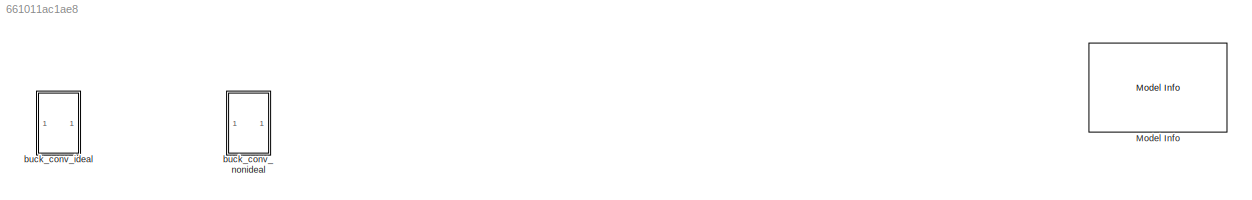
MODEL slx_661011ac1ae8
KIND model
CONFIG AbsTol = auto
CONFIG EnableMultiTasking = on
CONFIG FixedStep = 1e-7
CONFIG MaxStep = auto
CONFIG MinStep = auto
CONFIG RelTol = 1e-3
CONFIG SampleTimeConstraint = Unconstrained
CONFIG SolverName = ode3
CONFIG StartTime = 0.0
CONFIG StopTime = 0.06
BLOCK [Reference] Model Info  REF=simulink/Model-Wide
Utilities/Model Info
  Ports = []
  SourceBlock = simulink/Model-Wide\nUtilities/Model Info
  SourceProductBaseCode = SL
  SourceType = CMBlock
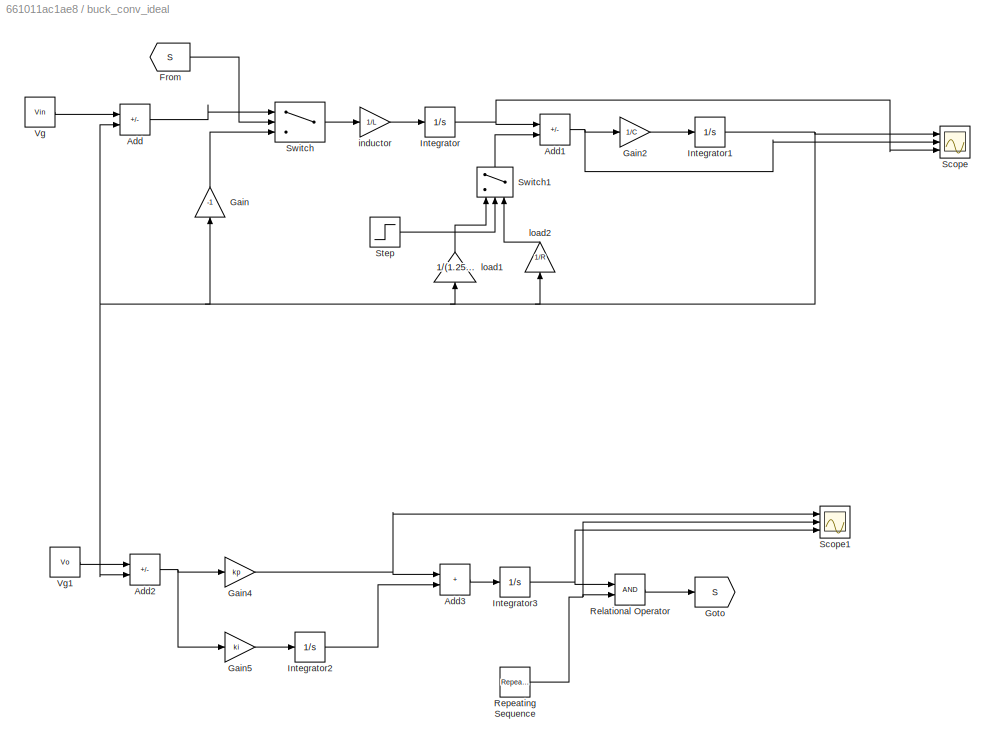
BLOCK [SubSystem] buck_conv_ideal
  Commented = on
  Ports = []
  RequestExecContextInheritance = off
BLOCK [Sum] buck_conv_ideal/Add
  IconShape = rectangular
  Inputs = +-
  Ports = [2, 1]
BLOCK [Sum] buck_conv_ideal/Add1
  IconShape = rectangular
  Inputs = +-
  Ports = [2, 1]
BLOCK [Sum] buck_conv_ideal/Add2
  IconShape = rectangular
  Inputs = +-
  Ports = [2, 1]
BLOCK [Sum] buck_conv_ideal/Add3
  IconShape = rectangular
  Inputs = 2
  Ports = [2, 1]
BLOCK [From] buck_conv_ideal/From
  GotoTag = S
BLOCK [Gain] buck_conv_ideal/Gain
  Gain = -1
  NameLocation = right
BLOCK [Gain] buck_conv_ideal/Gain2
  Gain = 1/C
BLOCK [Gain] buck_conv_ideal/Gain4
  Gain = kp
BLOCK [Gain] buck_conv_ideal/Gain5
  Gain = ki
BLOCK [Goto] buck_conv_ideal/Goto
  GotoTag = S
BLOCK [Integrator] buck_conv_ideal/Integrator
  Ports = [1, 1]
BLOCK [Integrator] buck_conv_ideal/Integrator1
  Ports = [1, 1]
BLOCK [Integrator] buck_conv_ideal/Integrator2
  LimitOutput = on
  LowerSaturationLimit = -1
  Ports = [1, 1]
  UpperSaturationLimit = 1
BLOCK [Integrator] buck_conv_ideal/Integrator3
  LimitOutput = on
  LowerSaturationLimit = -1
  Ports = [1, 1]
  UpperSaturationLimit = 1
BLOCK [RelationalOperator] buck_conv_ideal/Relational Operator
  InputSameDT = off
  OutDataTypeStr = boolean
  Ports = [2, 1]
BLOCK [Reference] buck_conv_ideal/Repeating Sequence  REF=simulink/Sources/Repeating
Sequence
  Ports = [0, 1]
  SourceBlock = simulink/Sources/Repeating\nSequence
  SourceProductBaseCode = SL
  SourceType = Repeating table
BLOCK [Scope] buck_conv_ideal/Scope
  Floating = off
  NumInputPorts = 3
  Ports = [3]
  ScopeSpecificationString = Simulink.scopes.TimeScopeBlockCfg('CurrentConfiguration', extmgr.ConfigurationSet(extmgr.Configuration('Core','General UI',true,'FigureColor',[1 1 1]),extmgr.Configuration('Core','Source UI',true),extmgr.Configuration('Sources','WiredSimulink',true,'DataLoggingSaveFormat','StructureWithTime','DataLoggingMaxPoints','50000','DataLoggingDecimation','1','DataLoggingDecimateData',true),extmgr.Configura...<+5250ch>
BLOCK [Scope] buck_conv_ideal/Scope1
  Floating = off
  NumInputPorts = 3
  Ports = [3]
  ScopeSpecificationString = Simulink.scopes.TimeScopeBlockCfg('CurrentConfiguration', extmgr.ConfigurationSet(extmgr.Configuration('Core','General UI',true,'FigureColor',[1 1 1]),extmgr.Configuration('Core','Source UI',true),extmgr.Configuration('Sources','WiredSimulink',true,'DataLoggingVariableName','ScopeData1','DataLoggingSaveFormat','StructureWithTime','DataLoggingMaxPoints','50000','DataLoggingDecimation','1','DataLogg...<+5300ch>
BLOCK [Step] buck_conv_ideal/Step
  SampleTime = 0
  Time = 0.03
BLOCK [Switch] buck_conv_ideal/Switch
  InputSameDT = off
  SaturateOnIntegerOverflow = off
  Threshold = 1
BLOCK [Switch] buck_conv_ideal/Switch1
  InputSameDT = off
  NameLocation = right
  SaturateOnIntegerOverflow = off
  Threshold = 1
BLOCK [Constant] buck_conv_ideal/Vg
  Value = Vin
BLOCK [Constant] buck_conv_ideal/Vg1
  Value = Vo
BLOCK [Gain] buck_conv_ideal/inductor
  Gain = 1/L
BLOCK [Gain] buck_conv_ideal/load1
  Gain = 1/(1.25*R)
  NameLocation = left
BLOCK [Gain] buck_conv_ideal/load2
  Gain = 1/R
  NameLocation = left
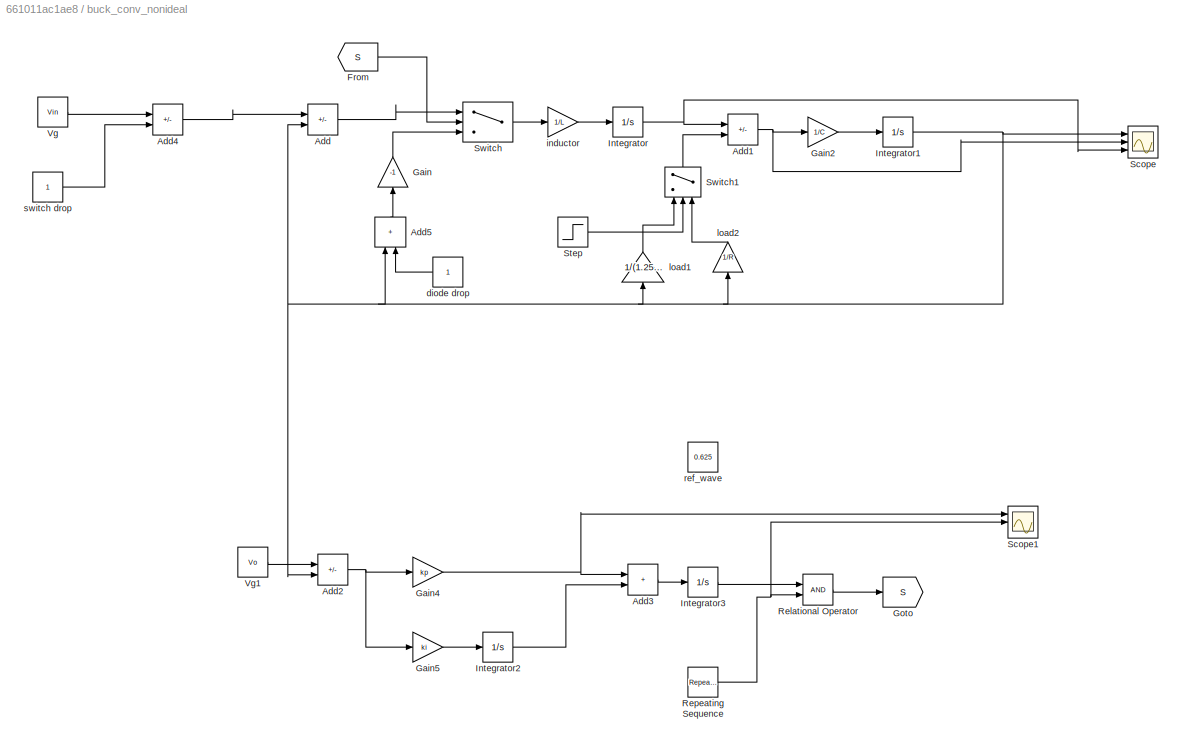
BLOCK [SubSystem] buck_conv_nonideal
  Ports = []
  RequestExecContextInheritance = off
BLOCK [Sum] buck_conv_nonideal/Add
  IconShape = rectangular
  Inputs = +-
  Ports = [2, 1]
BLOCK [Sum] buck_conv_nonideal/Add1
  IconShape = rectangular
  Inputs = +-
  Ports = [2, 1]
BLOCK [Sum] buck_conv_nonideal/Add2
  IconShape = rectangular
  Inputs = +-
  Ports = [2, 1]
BLOCK [Sum] buck_conv_nonideal/Add3
  IconShape = rectangular
  Inputs = 2
  Ports = [2, 1]
BLOCK [Sum] buck_conv_nonideal/Add4
  IconShape = rectangular
  Inputs = +-
  Ports = [2, 1]
BLOCK [Sum] buck_conv_nonideal/Add5
  IconShape = rectangular
  Inputs = 2
  NameLocation = right
  Ports = [2, 1]
BLOCK [From] buck_conv_nonideal/From
  GotoTag = S
BLOCK [Gain] buck_conv_nonideal/Gain
  Gain = -1
  NameLocation = right
BLOCK [Gain] buck_conv_nonideal/Gain2
  Gain = 1/C
BLOCK [Gain] buck_conv_nonideal/Gain4
  Gain = kp
BLOCK [Gain] buck_conv_nonideal/Gain5
  Gain = ki
BLOCK [Goto] buck_conv_nonideal/Goto
  GotoTag = S
BLOCK [Integrator] buck_conv_nonideal/Integrator
  Ports = [1, 1]
BLOCK [Integrator] buck_conv_nonideal/Integrator1
  Ports = [1, 1]
BLOCK [Integrator] buck_conv_nonideal/Integrator2
  LimitOutput = on
  LowerSaturationLimit = -1
  Ports = [1, 1]
  UpperSaturationLimit = 1
BLOCK [Integrator] buck_conv_nonideal/Integrator3
  LimitOutput = on
  LowerSaturationLimit = -1
  Ports = [1, 1]
  UpperSaturationLimit = 1
BLOCK [RelationalOperator] buck_conv_nonideal/Relational Operator
  InputSameDT = off
  OutDataTypeStr = boolean
  Ports = [2, 1]
BLOCK [Reference] buck_conv_nonideal/Repeating Sequence  REF=simulink/Sources/Repeating
Sequence
  Ports = [0, 1]
  SourceBlock = simulink/Sources/Repeating\nSequence
  SourceProductBaseCode = SL
  SourceType = Repeating table
BLOCK [Scope] buck_conv_nonideal/Scope
  Floating = off
  NumInputPorts = 3
  Ports = [3]
  ScopeSpecificationString = Simulink.scopes.TimeScopeBlockCfg('CurrentConfiguration', extmgr.ConfigurationSet(extmgr.Configuration('Core','General UI',true,'FigureColor',[1 1 1]),extmgr.Configuration('Core','Source UI',true),extmgr.Configuration('Sources','WiredSimulink',true,'DataLoggingSaveFormat','StructureWithTime','DataLoggingMaxPoints','50000','DataLoggingDecimation','1','DataLoggingDecimateData',true),extmgr.Configura...<+5303ch>
BLOCK [Scope] buck_conv_nonideal/Scope1
  Floating = off
  NumInputPorts = 3
  Ports = [3]
  ScopeSpecificationString = Simulink.scopes.TimeScopeBlockCfg('CurrentConfiguration', extmgr.ConfigurationSet(extmgr.Configuration('Core','General UI',true,'FigureColor',[1 1 1]),extmgr.Configuration('Core','Source UI',true),extmgr.Configuration('Sources','WiredSimulink',true,'DataLoggingVariableName','ScopeData1','DataLoggingSaveFormat','StructureWithTime','DataLoggingMaxPoints','50000','DataLoggingDecimation','1','DataLogg...<+5324ch>
BLOCK [Step] buck_conv_nonideal/Step
  SampleTime = 0
  Time = 0.03
BLOCK [Switch] buck_conv_nonideal/Switch
  InputSameDT = off
  SaturateOnIntegerOverflow = off
  Threshold = 1
BLOCK [Switch] buck_conv_nonideal/Switch1
  InputSameDT = off
  NameLocation = right
  SaturateOnIntegerOverflow = off
  Threshold = 1
BLOCK [Constant] buck_conv_nonideal/Vg
  Value = Vin
BLOCK [Constant] buck_conv_nonideal/Vg1
  Value = Vo
BLOCK [Constant] buck_conv_nonideal/diode drop
  NameLocation = top
BLOCK [Gain] buck_conv_nonideal/inductor
  Gain = 1/L
BLOCK [Gain] buck_conv_nonideal/load1
  Gain = 1/(1.25*R)
  NameLocation = left
BLOCK [Gain] buck_conv_nonideal/load2
  Gain = 1/R
  NameLocation = left
BLOCK [Constant] buck_conv_nonideal/ref_wave
  Value = 0.625
BLOCK [Constant] buck_conv_nonideal/switch drop
NET buck_conv_ideal/Add1:1 -> buck_conv_ideal/Gain2:1, buck_conv_ideal/Scope:2
NET buck_conv_ideal/Add2:1 -> buck_conv_ideal/Gain4:1, buck_conv_ideal/Gain5:1
LINE buck_conv_ideal/Add3:1 -> buck_conv_ideal/Integrator3:1
LINE buck_conv_ideal/Add:1 -> buck_conv_ideal/Switch:1
LINE buck_conv_ideal/From:1 -> buck_conv_ideal/Switch:2
LINE buck_conv_ideal/Gain2:1 -> buck_conv_ideal/Integrator1:1
NET buck_conv_ideal/Gain4:1 -> buck_conv_ideal/Add3:1, buck_conv_ideal/Scope1:1
LINE buck_conv_ideal/Gain5:1 -> buck_conv_ideal/Integrator2:1
LINE buck_conv_ideal/Gain:1 -> buck_conv_ideal/Switch:3
NET buck_conv_ideal/Integrator1:1 -> buck_conv_ideal/Add2:2, buck_conv_ideal/Add:2, buck_conv_ideal/Gain:1, buck_conv_ideal/Scope:1, buck_conv_ideal/load1:1, buck_conv_ideal/load2:1
LINE buck_conv_ideal/Integrator2:1 -> buck_conv_ideal/Add3:2
NET buck_conv_ideal/Integrator3:1 -> buck_conv_ideal/Relational Operator:1, buck_conv_ideal/Scope1:3
NET buck_conv_ideal/Integrator:1 -> buck_conv_ideal/Add1:1, buck_conv_ideal/Scope:3
LINE buck_conv_ideal/Relational Operator:1 -> buck_conv_ideal/Goto:1
NET buck_conv_ideal/Repeating Sequence:1 -> buck_conv_ideal/Relational Operator:2, buck_conv_ideal/Scope1:2
LINE buck_conv_ideal/Step:1 -> buck_conv_ideal/Switch1:2
LINE buck_conv_ideal/Switch1:1 -> buck_conv_ideal/Add1:2
LINE buck_conv_ideal/Switch:1 -> buck_conv_ideal/inductor:1
LINE buck_conv_ideal/Vg1:1 -> buck_conv_ideal/Add2:1
LINE buck_conv_ideal/Vg:1 -> buck_conv_ideal/Add:1
LINE buck_conv_ideal/inductor:1 -> buck_conv_ideal/Integrator:1
LINE buck_conv_ideal/load1:1 -> buck_conv_ideal/Switch1:1
LINE buck_conv_ideal/load2:1 -> buck_conv_ideal/Switch1:3
NET buck_conv_nonideal/Add1:1 -> buck_conv_nonideal/Gain2:1, buck_conv_nonideal/Scope:2
NET buck_conv_nonideal/Add2:1 -> buck_conv_nonideal/Gain4:1, buck_conv_nonideal/Gain5:1
LINE buck_conv_nonideal/Add3:1 -> buck_conv_nonideal/Integrator3:1
LINE buck_conv_nonideal/Add4:1 -> buck_conv_nonideal/Add:1
LINE buck_conv_nonideal/Add5:1 -> buck_conv_nonideal/Gain:1
LINE buck_conv_nonideal/Add:1 -> buck_conv_nonideal/Switch:1
LINE buck_conv_nonideal/From:1 -> buck_conv_nonideal/Switch:2
LINE buck_conv_nonideal/Gain2:1 -> buck_conv_nonideal/Integrator1:1
NET buck_conv_nonideal/Gain4:1 -> buck_conv_nonideal/Add3:1, buck_conv_nonideal/Scope1:1
LINE buck_conv_nonideal/Gain5:1 -> buck_conv_nonideal/Integrator2:1
LINE buck_conv_nonideal/Gain:1 -> buck_conv_nonideal/Switch:3
NET buck_conv_nonideal/Integrator1:1 -> buck_conv_nonideal/Add2:2, buck_conv_nonideal/Add5:1, buck_conv_nonideal/Add:2, buck_conv_nonideal/Scope:1, buck_conv_nonideal/load1:1, buck_conv_nonideal/load2:1
LINE buck_conv_nonideal/Integrator2:1 -> buck_conv_nonideal/Add3:2
LINE buck_conv_nonideal/Integrator3:1 -> buck_conv_nonideal/Relational Operator:1
NET buck_conv_nonideal/Integrator:1 -> buck_conv_nonideal/Add1:1, buck_conv_nonideal/Scope:3
LINE buck_conv_nonideal/Relational Operator:1 -> buck_conv_nonideal/Goto:1
NET buck_conv_nonideal/Repeating Sequence:1 -> buck_conv_nonideal/Relational Operator:2, buck_conv_nonideal/Scope1:2
LINE buck_conv_nonideal/Step:1 -> buck_conv_nonideal/Switch1:2
LINE buck_conv_nonideal/Switch1:1 -> buck_conv_nonideal/Add1:2
LINE buck_conv_nonideal/Switch:1 -> buck_conv_nonideal/inductor:1
LINE buck_conv_nonideal/Vg1:1 -> buck_conv_nonideal/Add2:1
LINE buck_conv_nonideal/Vg:1 -> buck_conv_nonideal/Add4:1
LINE buck_conv_nonideal/diode drop:1 -> buck_conv_nonideal/Add5:2
LINE buck_conv_nonideal/inductor:1 -> buck_conv_nonideal/Integrator:1
LINE buck_conv_nonideal/load1:1 -> buck_conv_nonideal/Switch1:1
LINE buck_conv_nonideal/load2:1 -> buck_conv_nonideal/Switch1:3
LINE buck_conv_nonideal/switch drop:1 -> buck_conv_nonideal/Add4:2
note: NET lines group one-source signal fan-out (src -> all destinations, sorted); 1:1 wires keep LINE
